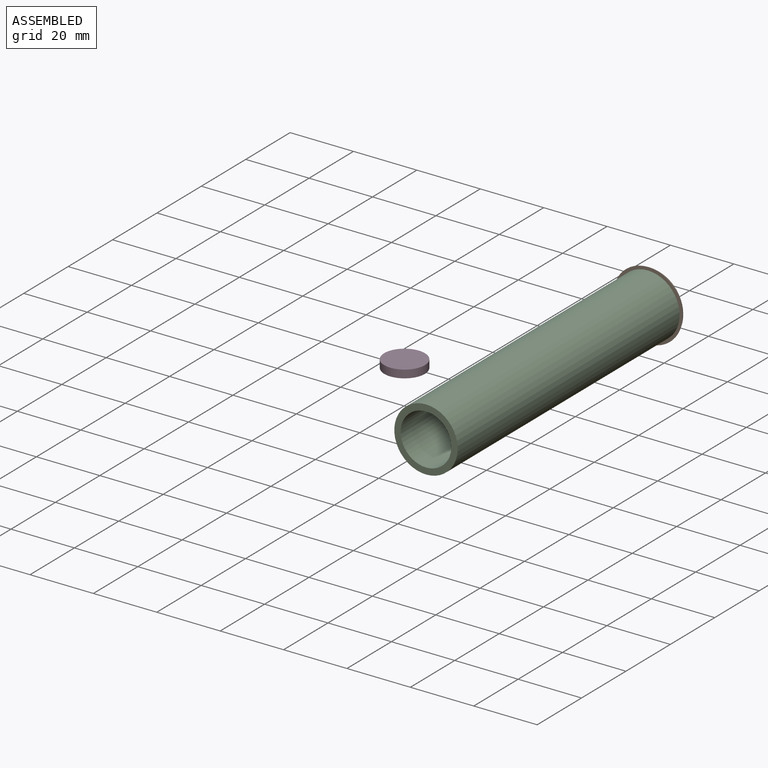
[diagram: assembled view]
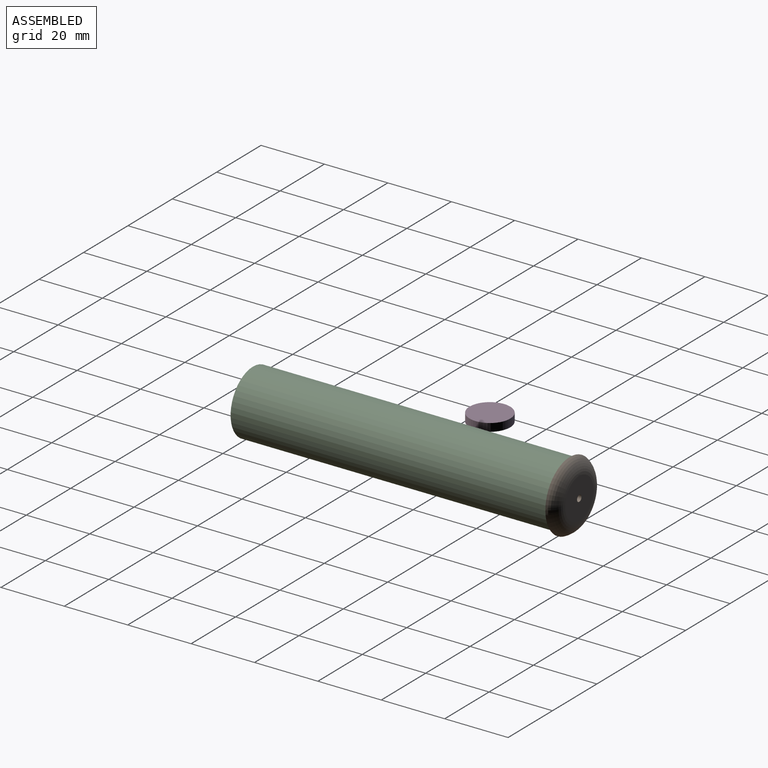
[diagram: assembled view, second angle]
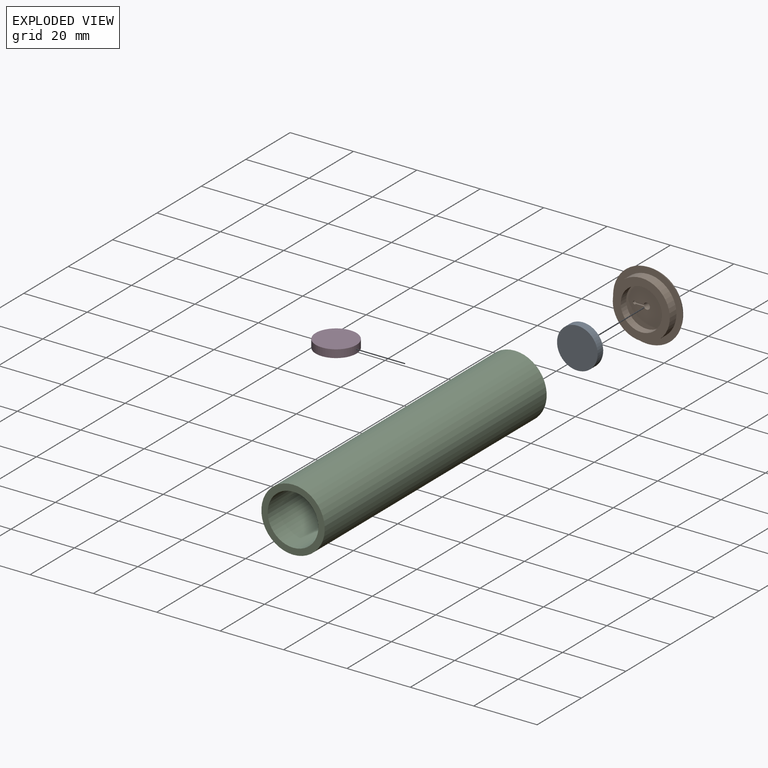
[diagram: exploded view]
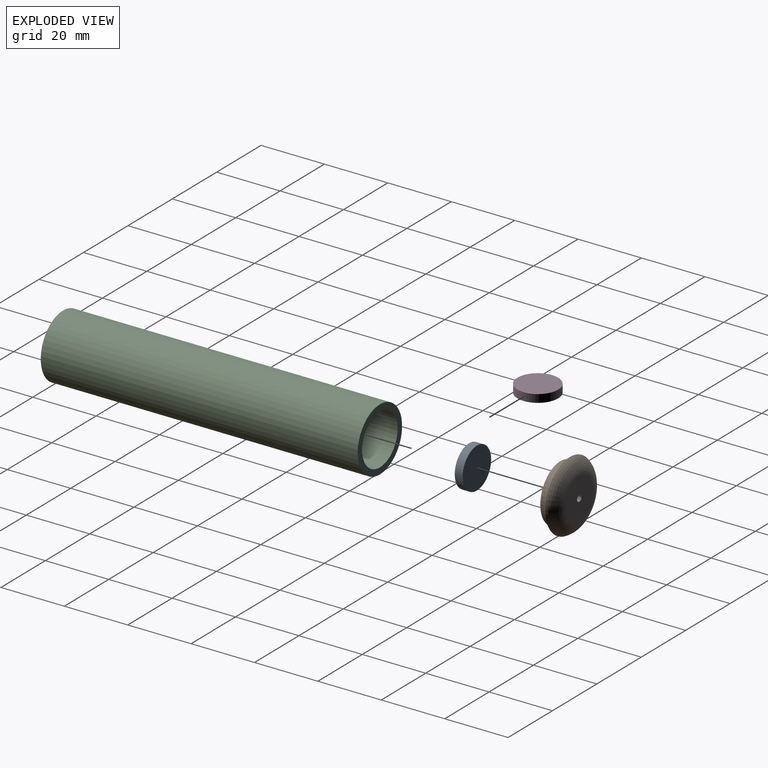
[diagram: exploded view, second angle]
ASSEMBLY  parts=4 mates=4
PART A: 3 faces, bbox 12.8x12.8x2.5 mm
  f0: cylinder r=6.41mm len=12.82mm, axis (0,0,1), area 100.7mm2, adj f1,f2
  f1: plane 12.82x12.82mm, normal (0,0,-1), area 129.1mm2, adj f0
  f2: plane 12.82x12.82mm, normal (0,0,1), area 129.1mm2, adj f0
PART B: 13 faces, bbox 24.7x6x24.7 mm
  f0: plane 18x18mm, normal (0,-1,0), area 121.7mm2, adj f3,f4
  f1: plane 12.84x12.84mm, normal (0,1,0), area 126.2mm2, adj f6,f12
  f2: plane 22x22mm, normal (0,-1,0), area 125.7mm2, adj f3,f12
  f3: cylinder r=9mm len=18mm, axis (0,1,0), area 169.6mm2, adj f0,f2
  f4: cylinder r=6.5mm len=13mm, axis (0,-1,0), area 102.1mm2, adj f0,f5
  f5: plane 13x13mm, normal (0,-1,0), area 127.6mm2, adj f4,f6,f7,f8,f10
  f6: cylinder r=1mm len=3.5mm, axis (0,-1,0), area 21.7mm2, adj f1,f5,f7,f8,f9
  f7: plane 2.5x0.5mm, normal (0,0,1), area 1.2mm2, adj f5,f6,f9,f10
  f8: plane 2.5x0.5mm, normal (0,0,-1), area 1.2mm2, adj f5,f6,f9,f10
  f9: plane 2.5x0.5mm, normal (0,-1,0), area 1.2mm2, adj f6,f7,f8,f10
  f10: cylinder r=0.5mm len=1mm, axis (0,-1,0), area 2.9mm2, adj f5,f7,f8,f9,f11
  f11: plane 1x1mm, normal (0,-1,0), area 0.8mm2, adj f10
  f12: torus R=6.42mm, axis (0,1,0), area 328mm2, adj f1,f2
PART C: 4 faces, bbox 20x20x100 mm
  f0: plane 20x20mm, normal (0,0,1), area 113.1mm2, adj f2,f3
  f1: plane 20x20mm, normal (0,0,-1), area 113.1mm2, adj f2,f3
  f2: cylinder r=10mm len=100mm, axis (0,0,-1), area 6283.2mm2, adj f0,f1
  f3: cylinder r=8mm len=100mm, axis (0,0,-1), area 5026.5mm2, adj f0,f1
PART D: same geometry as A
PLACE A rot(axis=(0.58,-0.58,0.58),120deg) t=(32.15,22.95,-4.28)mm
PLACE B t=(32.15,20.95,-4.28)mm fixed
PLACE C rot(axis=(0.58,-0.58,0.58),120deg) t=(32.15,23.95,-4.28)mm
PLACE D t=(-7.53,-29.03,-11.95)mm
MATE planar B.f4 <-> C.f2  axis (0,-1,0) through (32.15,23.95,-4.28)mm
MATE planar B.f5 <-> A.f0  axis (0,-1,0) through (29.93,23.45,-4.53)mm
MATE cylindrical B.f3 <-> C.f2  axis (0,1,0) through (32.15,22.45,-4.28)mm
MATE cylindrical A.f0 <-> B.f3  axis (0,-1,0) through (32.15,22.2,-4.28)mm
